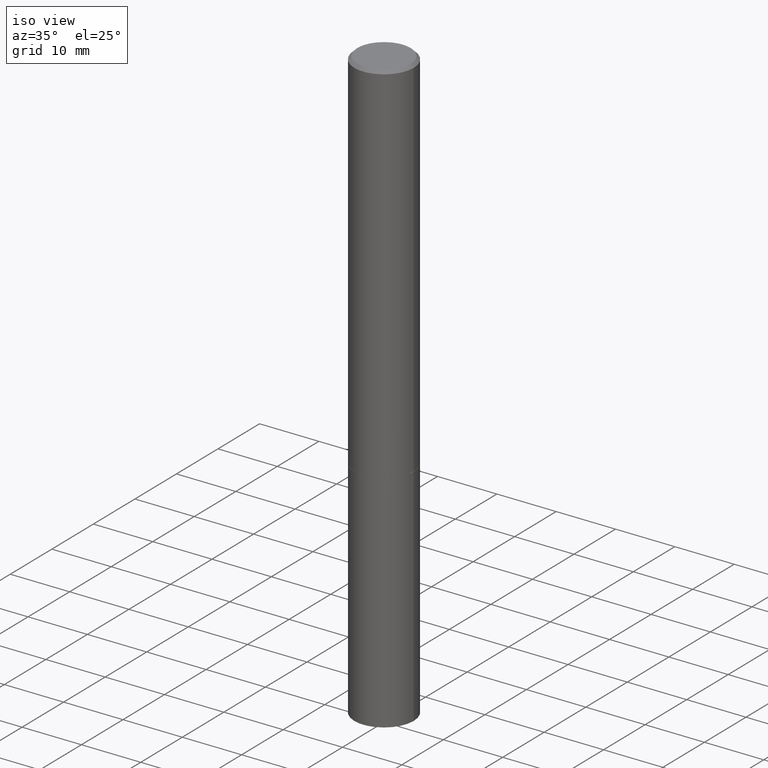
[diagram: clean part render]
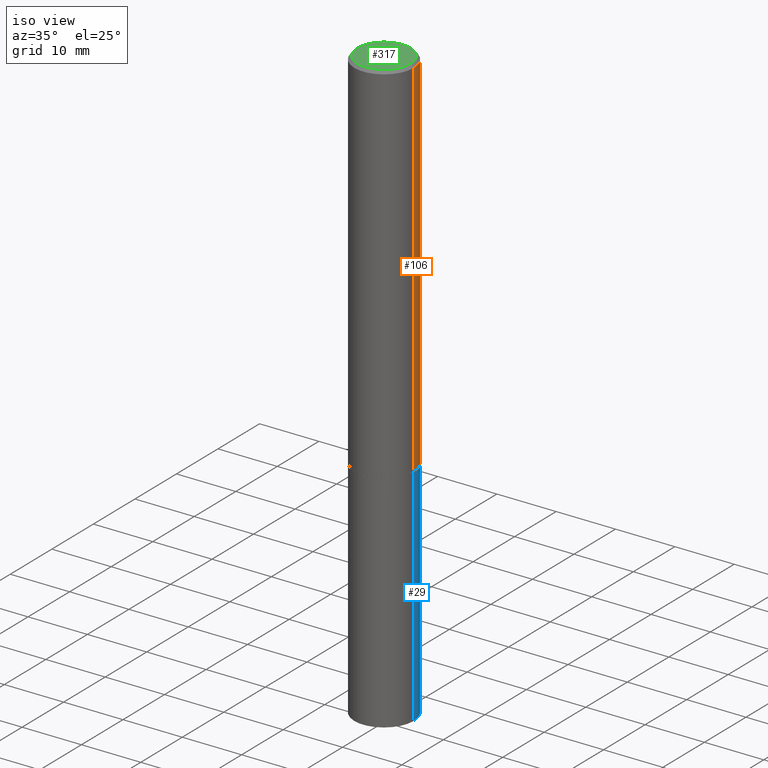
[diagram: same view with three faces highlighted in distinct colors, each labeled with its STEP entity id]
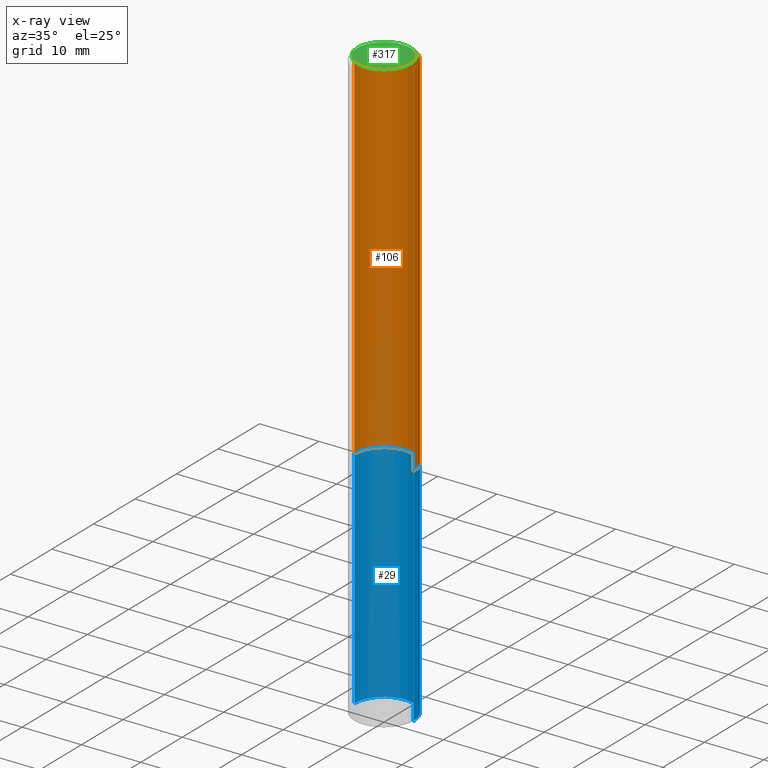
[diagram: x-ray of the same camera — body ghosted, the three highlighted faces saturated]
A machine part, iso view with three faces highlighted in distinct colors.
The next image is the same camera in x-ray (body ghosted, the three faces saturated) — at least one of them is partly hidden behind the body in this view.
Their STEP definitions:

[orange] entity #106 — the highlighted cylindrical surface (edge-blend (fillet) strip) has radius 5 mm, axis along (-0, 0, 1).
#2 = EDGE_CURVE ( 'NONE', #66, #182, #45, .T. ) ;
#3 = CARTESIAN_POINT ( 'NONE',  ( 0.1968500000000000527, -9.893461521745931567E-15, -2.439899999999999736 ) ) ;
#15 = DIRECTION ( 'NONE',  ( 1.000000000000000000, -6.982962677686266711E-15, 0.000000000000000000 ) ) ;
#28 = ORIENTED_EDGE ( 'NONE', *, *, #230, .F. ) ;
#32 = CARTESIAN_POINT ( 'NONE',  ( 4.890937612370278413E-31, -6.982962677686297772E-17, -0.02000000000000002123 ) ) ;
#34 = CYLINDRICAL_SURFACE ( 'NONE', #119, 0.1968499999999998307 ) ;
#43 = CARTESIAN_POINT ( 'NONE',  ( -0.1968500000000000527, -2.895644097366364896E-15, -2.439899999999999736 ) ) ;
#45 = LINE ( 'NONE', #112, #238 ) ;
#66 = VERTEX_POINT ( 'NONE', #3 ) ;
#71 = CARTESIAN_POINT ( 'NONE',  ( 5.966699340211114556E-29, -8.518865318643389958E-15, -2.439899999999999736 ) ) ;
#85 = CIRCLE ( 'NONE', #225, 0.1968500000000000527 ) ;
#92 = CARTESIAN_POINT ( 'NONE',  ( -0.1968499999999998307, 1.398703375343756013E-15, -9.682923725166775270E-30 ) ) ;
#94 = DIRECTION ( 'NONE',  ( -2.445468806185136597E-29, 3.491481338843145583E-15, 1.000000000000000000 ) ) ;
#97 = EDGE_CURVE ( 'NONE', #363, #350, #320, .T. ) ;
#103 = EDGE_LOOP ( 'NONE', ( #301, #144, #28, #283 ) ) ;
#106 = ADVANCED_FACE ( 'NONE', ( #287 ), #34, .T. ) ;
#112 = CARTESIAN_POINT ( 'NONE',  ( 0.1968499999999998307, -1.374596203102540425E-15, 9.598753983154291049E-30 ) ) ;
#117 = CARTESIAN_POINT ( 'NONE',  ( 0.000000000000000000, 0.000000000000000000, 0.000000000000000000 ) ) ;
#119 = AXIS2_PLACEMENT_3D ( 'NONE', #117, #288, #229 ) ;
#123 = VECTOR ( 'NONE', #167, 39.37007874015748143 ) ;
#124 = CARTESIAN_POINT ( 'NONE',  ( -0.1968499999999996364, 1.304766576325675944E-15, -0.02000000000000002123 ) ) ;
#139 = DIRECTION ( 'NONE',  ( 1.000000000000000000, -6.982962677686266711E-15, 0.000000000000000000 ) ) ;
#144 = ORIENTED_EDGE ( 'NONE', *, *, #97, .T. ) ;
#146 = AXIS2_PLACEMENT_3D ( 'NONE', #32, #340, #139 ) ;
#161 = DIRECTION ( 'NONE',  ( -2.445468806185136877E-29, 3.491481338843145188E-15, 1.000000000000000000 ) ) ;
#167 = DIRECTION ( 'NONE',  ( -2.445468806185136877E-29, 3.491481338843145188E-15, 1.000000000000000000 ) ) ;
#182 = VERTEX_POINT ( 'NONE', #265 ) ;
#190 = CIRCLE ( 'NONE', #146, 0.1968499999999996364 ) ;
#225 = AXIS2_PLACEMENT_3D ( 'NONE', #71, #94, #15 ) ;
#229 = DIRECTION ( 'NONE',  ( 1.000000000000000000, -6.982962677686266711E-15, 4.876176775795935793E-29 ) ) ;
#230 = EDGE_CURVE ( 'NONE', #182, #350, #190, .T. ) ;
#238 = VECTOR ( 'NONE', #161, 39.37007874015748143 ) ;
#265 = CARTESIAN_POINT ( 'NONE',  ( 0.1968499999999996364, -1.420318657638186558E-15, -0.02000000000000002123 ) ) ;
#283 = ORIENTED_EDGE ( 'NONE', *, *, #2, .F. ) ;
#287 = FACE_OUTER_BOUND ( 'NONE', #103, .T. ) ;
#288 = DIRECTION ( 'NONE',  ( -2.445468806185136597E-29, 3.491481338843145583E-15, 1.000000000000000000 ) ) ;
#290 = EDGE_CURVE ( 'NONE', #66, #363, #85, .T. ) ;
#301 = ORIENTED_EDGE ( 'NONE', *, *, #290, .T. ) ;
#320 = LINE ( 'NONE', #92, #123 ) ;
#340 = DIRECTION ( 'NONE',  ( -2.445468806185136597E-29, 3.491481338843145583E-15, 1.000000000000000000 ) ) ;
#350 = VERTEX_POINT ( 'NONE', #124 ) ;
#363 = VERTEX_POINT ( 'NONE', #43 ) ;

[blue] entity #29 — the highlighted cylindrical surface (edge-blend (fillet) strip) has radius 5 mm, axis along (-0, 0, 1).
#1 = AXIS2_PLACEMENT_3D ( 'NONE', #11, #165, #64 ) ;
#11 = CARTESIAN_POINT ( 'NONE',  ( 5.969144809017299038E-29, -8.522356799982232966E-15, -2.440900000000000070 ) ) ;
#16 = VERTEX_POINT ( 'NONE', #110 ) ;
#19 = DIRECTION ( 'NONE',  ( -2.445468806185136877E-29, 3.491481338843145188E-15, 1.000000000000000000 ) ) ;
#20 = VECTOR ( 'NONE', #351, 39.37007874015748143 ) ;
#29 = ADVANCED_FACE ( 'NONE', ( #246 ), #330, .T. ) ;
#59 = CARTESIAN_POINT ( 'NONE',  ( 0.000000000000000000, 0.000000000000000000, 0.000000000000000000 ) ) ;
#64 = DIRECTION ( 'NONE',  ( 1.000000000000000000, -6.982962677686262766E-15, 0.000000000000000000 ) ) ;
#68 = VECTOR ( 'NONE', #19, 39.37007874015748143 ) ;
#76 = DIRECTION ( 'NONE',  ( 1.000000000000000000, -6.982962677686267499E-15, 0.000000000000000000 ) ) ;
#83 = EDGE_CURVE ( 'NONE', #227, #16, #113, .T. ) ;
#84 = DIRECTION ( 'NONE',  ( -2.445468806185136597E-29, 3.491481338843145583E-15, 1.000000000000000000 ) ) ;
#99 = ORIENTED_EDGE ( 'NONE', *, *, #193, .F. ) ;
#110 = CARTESIAN_POINT ( 'NONE',  ( -0.1968500000000000250, -9.735456040160091980E-15, -3.937000000000000277 ) ) ;
#113 = CIRCLE ( 'NONE', #318, 0.1968500000000000250 ) ;
#114 = VERTEX_POINT ( 'NONE', #118 ) ;
#115 = CARTESIAN_POINT ( 'NONE',  ( 9.627810689950883669E-29, -1.374596203102546341E-14, -3.937000000000000277 ) ) ;
#118 = CARTESIAN_POINT ( 'NONE',  ( 0.1968500000000000250, -9.896953003084774574E-15, -2.440900000000000070 ) ) ;
#138 = CARTESIAN_POINT ( 'NONE',  ( -0.1968500000000000250, -9.735456040160091980E-15, -2.440900000000000070 ) ) ;
#148 = ORIENTED_EDGE ( 'NONE', *, *, #83, .T. ) ;
#149 = VERTEX_POINT ( 'NONE', #138 ) ;
#153 = CIRCLE ( 'NONE', #1, 0.1968500000000000250 ) ;
#165 = DIRECTION ( 'NONE',  ( -2.445468806185136597E-29, 3.491481338843145583E-15, 1.000000000000000000 ) ) ;
#192 = DIRECTION ( 'NONE',  ( 1.000000000000000000, -6.982962677686265922E-15, 4.876176775795935793E-29 ) ) ;
#193 = EDGE_CURVE ( 'NONE', #114, #149, #153, .T. ) ;
#203 = AXIS2_PLACEMENT_3D ( 'NONE', #59, #84, #192 ) ;
#227 = VERTEX_POINT ( 'NONE', #314 ) ;
#241 = ORIENTED_EDGE ( 'NONE', *, *, #306, .F. ) ;
#246 = FACE_OUTER_BOUND ( 'NONE', #346, .T. ) ;
#267 = LINE ( 'NONE', #296, #68 ) ;
#280 = EDGE_CURVE ( 'NONE', #16, #149, #327, .T. ) ;
#296 = CARTESIAN_POINT ( 'NONE',  ( 0.1968500000000000250, -1.374596203102541608E-15, 9.598753983154300858E-30 ) ) ;
#302 = CARTESIAN_POINT ( 'NONE',  ( -0.1968500000000000250, 1.398703375343757393E-15, -9.682923725166783677E-30 ) ) ;
#306 = EDGE_CURVE ( 'NONE', #227, #114, #267, .T. ) ;
#314 = CARTESIAN_POINT ( 'NONE',  ( 0.1968500000000000250, -1.512055823412800660E-14, -3.937000000000000277 ) ) ;
#318 = AXIS2_PLACEMENT_3D ( 'NONE', #115, #328, #76 ) ;
#327 = LINE ( 'NONE', #302, #20 ) ;
#328 = DIRECTION ( 'NONE',  ( -2.445468806185136597E-29, 3.491481338843145583E-15, 1.000000000000000000 ) ) ;
#330 = CYLINDRICAL_SURFACE ( 'NONE', #203, 0.1968500000000000250 ) ;
#346 = EDGE_LOOP ( 'NONE', ( #148, #354, #99, #241 ) ) ;
#351 = DIRECTION ( 'NONE',  ( -2.445468806185136877E-29, 3.491481338843145188E-15, 1.000000000000000000 ) ) ;
#354 = ORIENTED_EDGE ( 'NONE', *, *, #280, .T. ) ;

[green] entity #317 — the highlighted planar face has unit normal (0, -0, -1).
#13 = ORIENTED_EDGE ( 'NONE', *, *, #211, .T. ) ;
#27 = EDGE_LOOP ( 'NONE', ( #81, #13 ) ) ;
#37 = DIRECTION ( 'NONE',  ( 1.000000000000000000, -6.982962677686266711E-15, 4.875932113059887537E-29 ) ) ;
#49 = AXIS2_PLACEMENT_3D ( 'NONE', #77, #244, #212 ) ;
#61 = AXIS2_PLACEMENT_3D ( 'NONE', #233, #342, #37 ) ;
#77 = CARTESIAN_POINT ( 'NONE',  ( 1.234936949548813631E-15, 0.1768499999999996464, -6.153342185293588703E-16 ) ) ;
#81 = ORIENTED_EDGE ( 'NONE', *, *, #355, .T. ) ;
#121 = CARTESIAN_POINT ( 'NONE',  ( 0.1768499999999996464, -1.316798864272039577E-15, 4.268512490109333727E-18 ) ) ;
#127 = VERTEX_POINT ( 'NONE', #140 ) ;
#128 = FACE_OUTER_BOUND ( 'NONE', #27, .T. ) ;
#132 = CIRCLE ( 'NONE', #61, 0.1768499999999996464 ) ;
#137 = CIRCLE ( 'NONE', #250, 0.1768499999999996464 ) ;
#140 = CARTESIAN_POINT ( 'NONE',  ( -0.1768499999999996464, 1.269851762937245083E-15, 4.268512490091652920E-18 ) ) ;
#206 = DIRECTION ( 'NONE',  ( -2.445468806185136597E-29, 3.491481338843145583E-15, 1.000000000000000000 ) ) ;
#211 = EDGE_CURVE ( 'NONE', #253, #127, #132, .T. ) ;
#212 = DIRECTION ( 'NONE',  ( -1.000000000000000000, 6.982962677686265922E-15, -4.876176775795935793E-29 ) ) ;
#233 = CARTESIAN_POINT ( 'NONE',  ( -1.043851414335219820E-46, 1.490343170380447200E-32, 4.268512490100411279E-18 ) ) ;
#240 = DIRECTION ( 'NONE',  ( 1.000000000000000000, -6.982962677686266711E-15, 4.875932113059887537E-29 ) ) ;
#244 = DIRECTION ( 'NONE',  ( 2.438088387897960049E-29, -3.491481338843145188E-15, -1.000000000000000000 ) ) ;
#250 = AXIS2_PLACEMENT_3D ( 'NONE', #325, #206, #240 ) ;
#253 = VERTEX_POINT ( 'NONE', #121 ) ;
#317 = ADVANCED_FACE ( 'NONE', ( #128 ), #331, .F. ) ;
#325 = CARTESIAN_POINT ( 'NONE',  ( -1.043851414335219820E-46, 1.490343170380447200E-32, 4.268512490100411279E-18 ) ) ;
#331 = PLANE ( 'NONE',  #49 ) ;
#342 = DIRECTION ( 'NONE',  ( -2.445468806185136597E-29, 3.491481338843145583E-15, 1.000000000000000000 ) ) ;
#355 = EDGE_CURVE ( 'NONE', #127, #253, #137, .T. ) ;